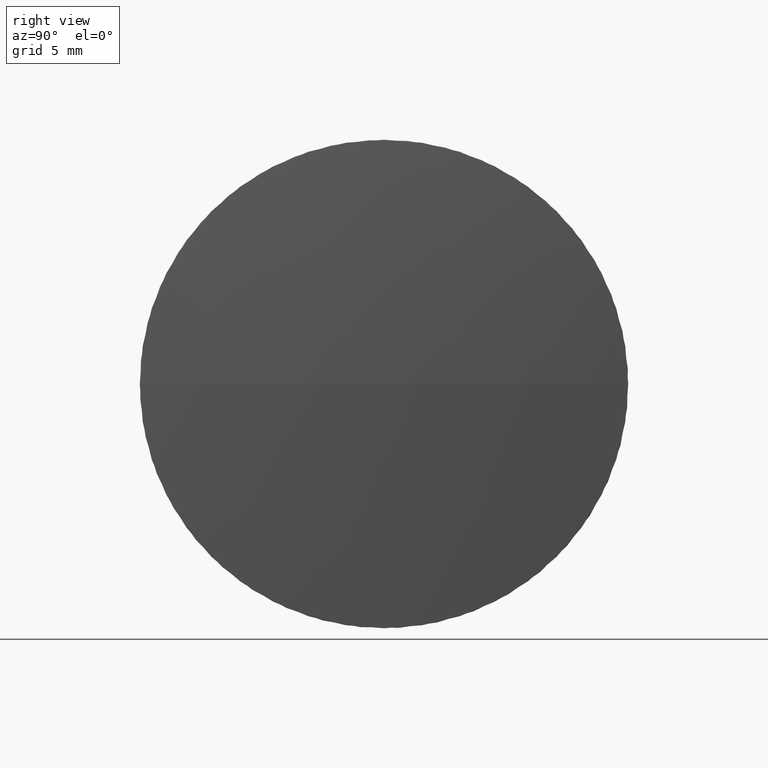
[diagram: clean part render]
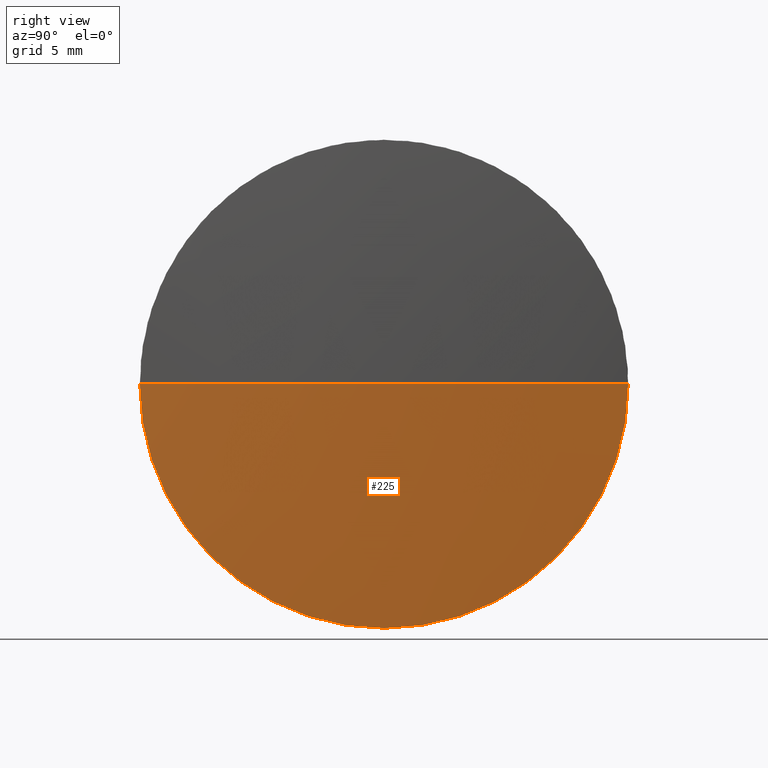
[diagram: same view with one face highlighted and labeled with its STEP entity id]
A machine part, right view. The second image highlights one B-rep face of the part: STEP entity #225.
In plain terms, the highlighted spherical surface has radius 137.53 mm.
Its self-contained STEP definition (entity closure, byte-faithful):
#19 = CIRCLE ( 'NONE', #257, 137.5299999999999727 ) ;
#22 = VERTEX_POINT ( 'NONE', #29 ) ;
#24 = ORIENTED_EDGE ( 'NONE', *, *, #178, .F. ) ;
#25 = EDGE_CURVE ( 'NONE', #22, #368, #195, .T. ) ;
#27 = AXIS2_PLACEMENT_3D ( 'NONE', #115, #152, #290 ) ;
#29 = CARTESIAN_POINT ( 'NONE',  ( -67.48416275664025932, 29.70318636122672729, 0.000000000000000000 ) ) ;
#36 = DIRECTION ( 'NONE',  ( 0.000000000000000000, 0.000000000000000000, 1.000000000000000000 ) ) ;
#44 = CARTESIAN_POINT ( 'NONE',  ( -205.0141627566402462, 29.70318636122672018, 0.000000000000000000 ) ) ;
#83 = DIRECTION ( 'NONE',  ( -0.000000000000000000, 0.000000000000000000, -1.000000000000000000 ) ) ;
#88 = CIRCLE ( 'NONE', #27, 12.69999999999999929 ) ;
#102 = AXIS2_PLACEMENT_3D ( 'NONE', #423, #149, #36 ) ;
#110 = AXIS2_PLACEMENT_3D ( 'NONE', #340, #133, #436 ) ;
#115 = CARTESIAN_POINT ( 'NONE',  ( -68.07179933319122256, 29.70318636122672018, 0.000000000000000000 ) ) ;
#125 = ORIENTED_EDGE ( 'NONE', *, *, #25, .T. ) ;
#133 = DIRECTION ( 'NONE',  ( 0.000000000000000000, 1.224646799147353207E-16, -1.000000000000000000 ) ) ;
#139 = CARTESIAN_POINT ( 'NONE',  ( -205.0141627566402462, 29.70318636122672018, 0.000000000000000000 ) ) ;
#142 = FACE_OUTER_BOUND ( 'NONE', #329, .T. ) ;
#149 = DIRECTION ( 'NONE',  ( -1.000000000000000000, -0.000000000000000000, -0.000000000000000000 ) ) ;
#152 = DIRECTION ( 'NONE',  ( -1.000000000000000000, -0.000000000000000000, -0.000000000000000000 ) ) ;
#166 = ORIENTED_EDGE ( 'NONE', *, *, #194, .F. ) ;
#178 = EDGE_CURVE ( 'NONE', #366, #298, #88, .T. ) ;
#180 = DIRECTION ( 'NONE',  ( -0.000000000000000000, 0.000000000000000000, 1.000000000000000000 ) ) ;
#194 = EDGE_CURVE ( 'NONE', #298, #368, #342, .T. ) ;
#195 = CIRCLE ( 'NONE', #110, 137.5299999999999727 ) ;
#225 = ADVANCED_FACE ( 'NONE', ( #142 ), #256, .T. ) ;
#243 = EDGE_CURVE ( 'NONE', #22, #366, #19, .T. ) ;
#250 = CARTESIAN_POINT ( 'NONE',  ( -68.07179933319123677, 42.40318636122695750, 0.000000000000000000 ) ) ;
#256 = SPHERICAL_SURFACE ( 'NONE', #358, 137.5299999999999727 ) ;
#257 = AXIS2_PLACEMENT_3D ( 'NONE', #139, #180, #281 ) ;
#281 = DIRECTION ( 'NONE',  ( 1.000000000000000000, 0.000000000000000000, 0.000000000000000000 ) ) ;
#287 = CARTESIAN_POINT ( 'NONE',  ( -68.07179933319123677, 17.00318636122648996, -1.555301434917167226E-15 ) ) ;
#290 = DIRECTION ( 'NONE',  ( 0.000000000000000000, 0.000000000000000000, 1.000000000000000000 ) ) ;
#298 = VERTEX_POINT ( 'NONE', #326 ) ;
#306 = ORIENTED_EDGE ( 'NONE', *, *, #243, .F. ) ;
#326 = CARTESIAN_POINT ( 'NONE',  ( -68.07179933319122256, 29.70318636122672018, -12.69999999999999929 ) ) ;
#329 = EDGE_LOOP ( 'NONE', ( #306, #125, #166, #24 ) ) ;
#340 = CARTESIAN_POINT ( 'NONE',  ( -205.0141627566402462, 29.70318636122672018, 0.000000000000000000 ) ) ;
#342 = CIRCLE ( 'NONE', #102, 12.69999999999999929 ) ;
#358 = AXIS2_PLACEMENT_3D ( 'NONE', #44, #83, #360 ) ;
#360 = DIRECTION ( 'NONE',  ( 0.000000000000000000, 1.000000000000000000, 0.000000000000000000 ) ) ;
#366 = VERTEX_POINT ( 'NONE', #250 ) ;
#368 = VERTEX_POINT ( 'NONE', #287 ) ;
#423 = CARTESIAN_POINT ( 'NONE',  ( -68.07179933319122256, 29.70318636122672018, 0.000000000000000000 ) ) ;
#436 = DIRECTION ( 'NONE',  ( 0.000000000000000000, 1.000000000000000000, 1.224646799147353207E-16 ) ) ;